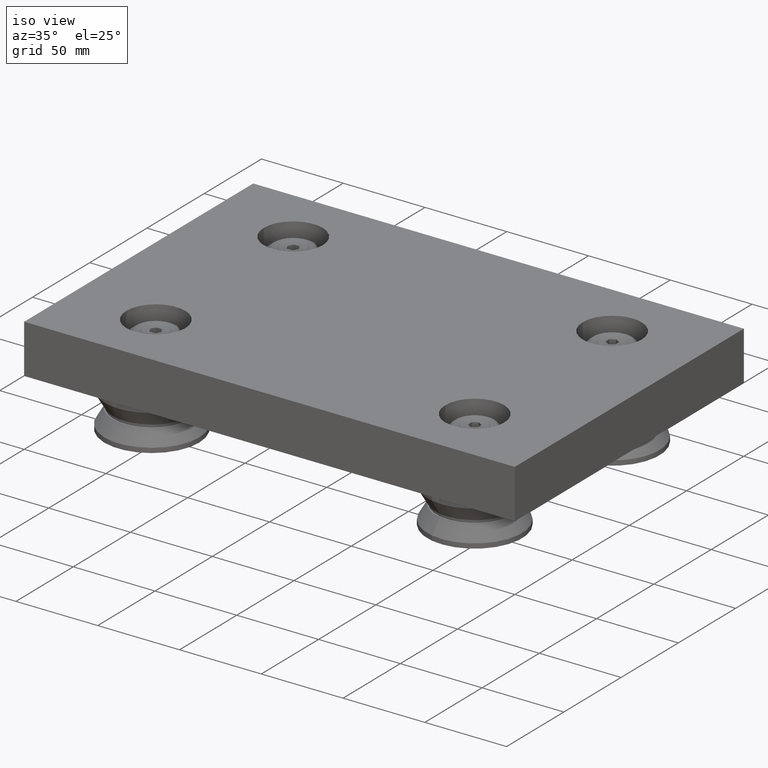
[diagram: clean part render]
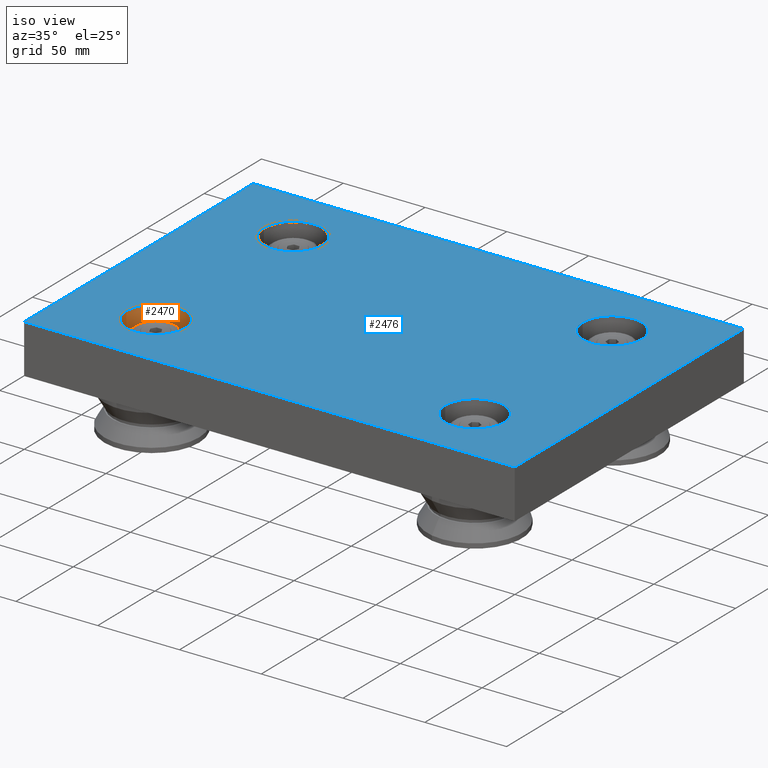
[diagram: same view with the hole feature highlighted: cylindrical wall and planar end face, labeled with their STEP entity ids]
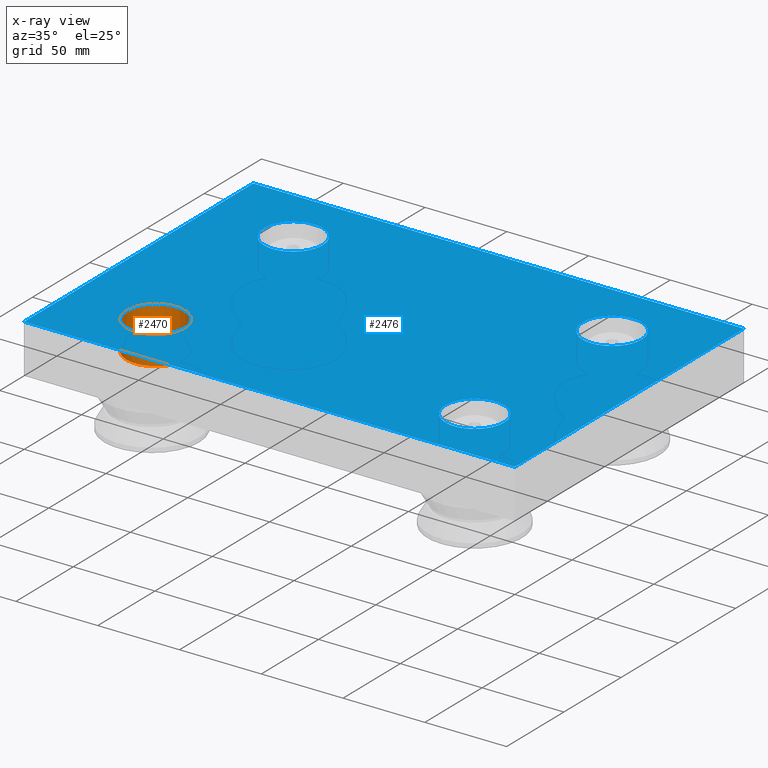
[diagram: x-ray of the same camera — body ghosted, the hole faces saturated]
A machine part, iso view. The highlighted faces form one hole feature of diameter 36 mm: the cylindrical wall (entity #2470, orange) and its adjacent planar end face (entity #2476, blue) — they share a circular edge in the B-rep.
The next image is the same camera in x-ray (body ghosted, the hole faces saturated) — the bore reads through the body.
Wall:
#145=LINE('',#4037,#344);
#344=VECTOR('',#3207,18.);
#543=CYLINDRICAL_SURFACE('',#2849,18.);
#625=FACE_OUTER_BOUND('',#790,.T.);
#790=EDGE_LOOP('',(#1704,#1705,#1706,#1707));
#982=CIRCLE('',#2847,18.);
#984=CIRCLE('',#2850,18.);
#1118=VERTEX_POINT('',#4030);
#1120=VERTEX_POINT('',#4035);
#1343=EDGE_CURVE('',#1118,#1118,#982,.T.);
#1345=EDGE_CURVE('',#1120,#1120,#984,.T.);
#1346=EDGE_CURVE('',#1120,#1118,#145,.T.);
#1704=ORIENTED_EDGE('',*,*,#1345,.F.);
#1705=ORIENTED_EDGE('',*,*,#1346,.T.);
#1706=ORIENTED_EDGE('',*,*,#1343,.F.);
#1707=ORIENTED_EDGE('',*,*,#1346,.F.);
#2470=ADVANCED_FACE('',(#625),#543,.F.);
#2847=AXIS2_PLACEMENT_3D('',#4031,#3199,#3200);
#2849=AXIS2_PLACEMENT_3D('',#4034,#3203,#3204);
#2850=AXIS2_PLACEMENT_3D('',#4036,#3205,#3206);
#3199=DIRECTION('center_axis',(0.,0.,1.));
#3200=DIRECTION('ref_axis',(1.,0.,0.));
#3203=DIRECTION('center_axis',(0.,0.,1.));
#3204=DIRECTION('ref_axis',(1.,0.,0.));
#3205=DIRECTION('center_axis',(0.,0.,-1.));
#3206=DIRECTION('ref_axis',(1.,0.,0.));
#3207=DIRECTION('',(0.,0.,-1.));
#4030=CARTESIAN_POINT('',(-115.5,-60.,12.5));
#4031=CARTESIAN_POINT('Origin',(-97.5,-60.,12.5));
#4034=CARTESIAN_POINT('Origin',(-97.5,-60.,21.25));
#4035=CARTESIAN_POINT('',(-115.5,-60.,30.));
#4036=CARTESIAN_POINT('Origin',(-97.5,-60.,30.));
#4037=CARTESIAN_POINT('',(-115.5,-60.,21.25));
End face:
#149=LINE('',#4049,#348);
#152=LINE('',#4055,#351);
#155=LINE('',#4061,#354);
#158=LINE('',#4065,#357);
#348=VECTOR('',#3217,10.);
#351=VECTOR('',#3222,10.);
#354=VECTOR('',#3227,10.);
#357=VECTOR('',#3232,10.);
#586=FACE_BOUND('',#797,.T.);
#587=FACE_BOUND('',#798,.T.);
#588=FACE_BOUND('',#799,.T.);
#589=FACE_BOUND('',#800,.T.);
#631=FACE_OUTER_BOUND('',#796,.T.);
#796=EDGE_LOOP('',(#1728,#1729,#1730,#1731));
#797=EDGE_LOOP('',(#1732));
#798=EDGE_LOOP('',(#1733));
#799=EDGE_LOOP('',(#1734));
#800=EDGE_LOOP('',(#1735));
#972=CIRCLE('',#2829,18.);
#976=CIRCLE('',#2836,18.);
#980=CIRCLE('',#2843,18.);
#984=CIRCLE('',#2850,18.);
#1108=VERTEX_POINT('',#3996);
#1112=VERTEX_POINT('',#4009);
#1116=VERTEX_POINT('',#4022);
#1120=VERTEX_POINT('',#4035);
#1124=VERTEX_POINT('',#4046);
#1125=VERTEX_POINT('',#4048);
#1127=VERTEX_POINT('',#4054);
#1129=VERTEX_POINT('',#4060);
#1327=EDGE_CURVE('',#1108,#1108,#972,.T.);
#1333=EDGE_CURVE('',#1112,#1112,#976,.T.);
#1339=EDGE_CURVE('',#1116,#1116,#980,.T.);
#1345=EDGE_CURVE('',#1120,#1120,#984,.T.);
#1351=EDGE_CURVE('',#1125,#1124,#149,.T.);
#1354=EDGE_CURVE('',#1127,#1125,#152,.T.);
#1357=EDGE_CURVE('',#1129,#1127,#155,.T.);
#1360=EDGE_CURVE('',#1124,#1129,#158,.T.);
#1728=ORIENTED_EDGE('',*,*,#1360,.T.);
#1729=ORIENTED_EDGE('',*,*,#1357,.T.);
#1730=ORIENTED_EDGE('',*,*,#1354,.T.);
#1731=ORIENTED_EDGE('',*,*,#1351,.T.);
#1732=ORIENTED_EDGE('',*,*,#1327,.T.);
#1733=ORIENTED_EDGE('',*,*,#1333,.T.);
#1734=ORIENTED_EDGE('',*,*,#1339,.T.);
#1735=ORIENTED_EDGE('',*,*,#1345,.T.);
#2374=PLANE('',#2857);
#2476=ADVANCED_FACE('',(#631,#586,#587,#588,#589),#2374,.T.);
#2829=AXIS2_PLACEMENT_3D('',#3997,#3157,#3158);
#2836=AXIS2_PLACEMENT_3D('',#4010,#3173,#3174);
#2843=AXIS2_PLACEMENT_3D('',#4023,#3189,#3190);
#2850=AXIS2_PLACEMENT_3D('',#4036,#3205,#3206);
#2857=AXIS2_PLACEMENT_3D('',#4066,#3233,#3234);
#3157=DIRECTION('center_axis',(0.,0.,-1.));
#3158=DIRECTION('ref_axis',(1.,0.,0.));
#3173=DIRECTION('center_axis',(0.,0.,-1.));
#3174=DIRECTION('ref_axis',(1.,0.,0.));
#3189=DIRECTION('center_axis',(0.,0.,-1.));
#3190=DIRECTION('ref_axis',(1.,0.,0.));
#3205=DIRECTION('center_axis',(0.,0.,-1.));
#3206=DIRECTION('ref_axis',(1.,0.,0.));
#3217=DIRECTION('',(0.,1.,0.));
#3222=DIRECTION('',(1.,0.,0.));
#3227=DIRECTION('',(0.,-1.,0.));
#3232=DIRECTION('',(-1.,0.,0.));
#3233=DIRECTION('center_axis',(0.,0.,1.));
#3234=DIRECTION('ref_axis',(1.,0.,0.));
#3996=CARTESIAN_POINT('',(79.5,-60.,30.));
#3997=CARTESIAN_POINT('Origin',(97.5,-60.,30.));
#4009=CARTESIAN_POINT('',(-115.5,60.,30.));
#4010=CARTESIAN_POINT('Origin',(-97.5,60.,30.));
#4022=CARTESIAN_POINT('',(79.5,60.,30.));
#4023=CARTESIAN_POINT('Origin',(97.5,60.,30.));
#4035=CARTESIAN_POINT('',(-115.5,-60.,30.));
#4036=CARTESIAN_POINT('Origin',(-97.5,-60.,30.));
#4046=CARTESIAN_POINT('',(150.,100.,30.));
#4048=CARTESIAN_POINT('',(150.,-100.,30.));
#4049=CARTESIAN_POINT('',(150.,100.,30.));
#4054=CARTESIAN_POINT('',(-150.,-100.,30.));
#4055=CARTESIAN_POINT('',(150.,-100.,30.));
#4060=CARTESIAN_POINT('',(-150.,100.,30.));
#4061=CARTESIAN_POINT('',(-150.,-100.,30.));
#4065=CARTESIAN_POINT('',(-150.,100.,30.));
#4066=CARTESIAN_POINT('Origin',(0.,0.,30.));